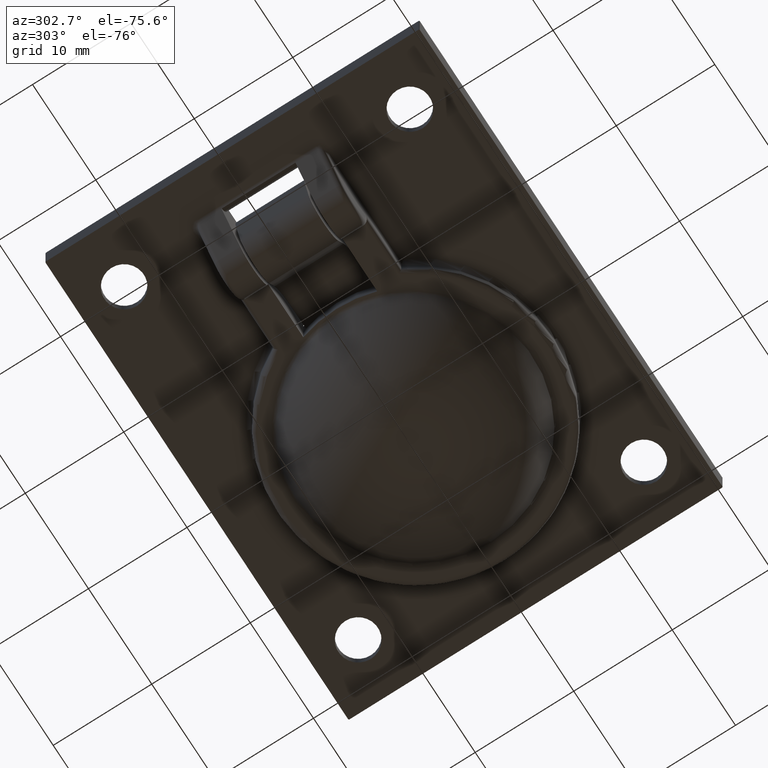
[diagram: clean part render]
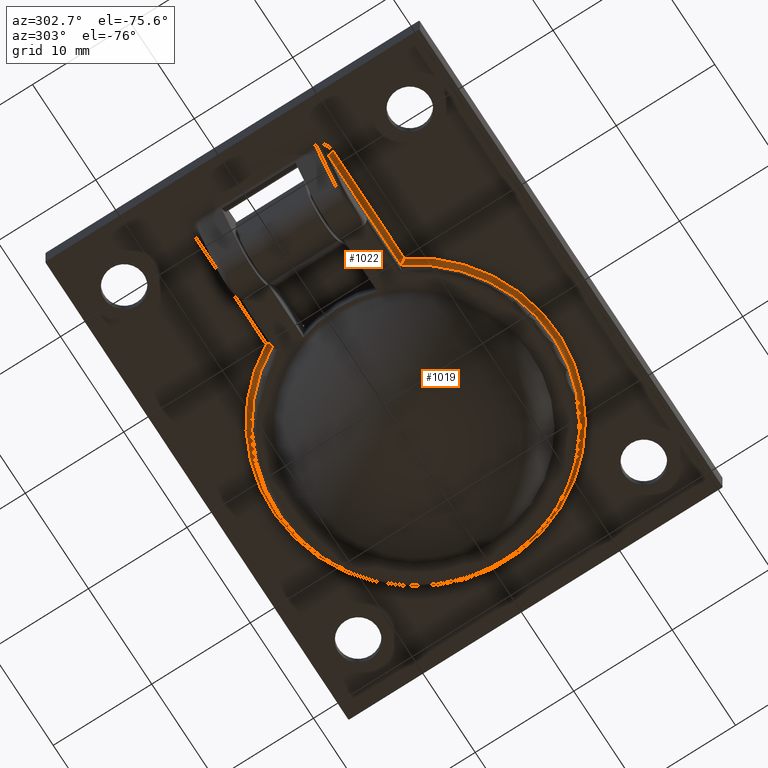
[diagram: same view with one multi-face feature highlighted, each face labeled with its STEP entity id]
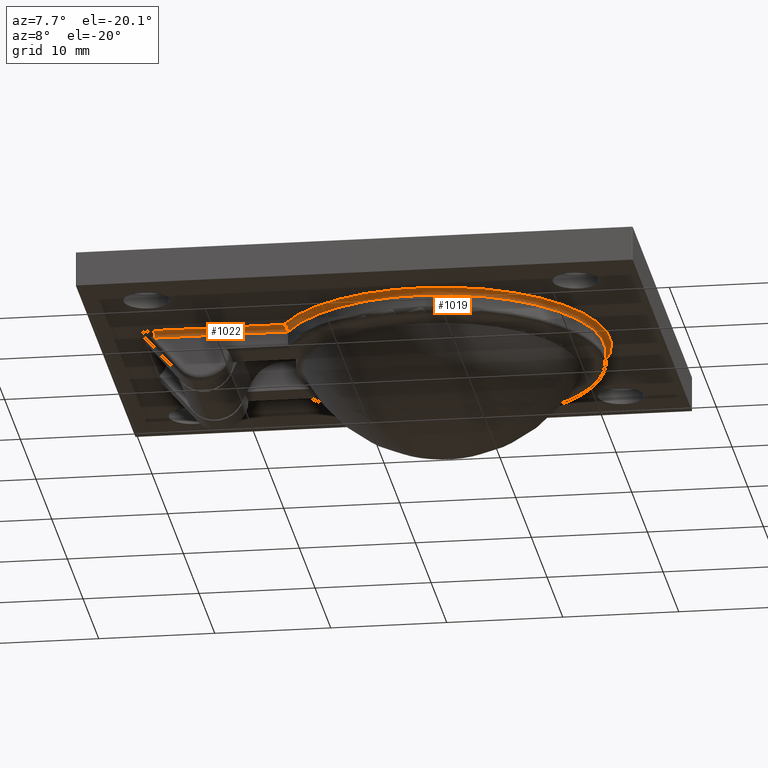
[diagram: same view with one multi-face feature highlighted, each face labeled with its STEP entity id]
A machine part, auxiliary view. The highlighted faces form ONE feature: a constant-radius fillet chain: 2 tangent blend faces with common blend radius 0.5 mm. The faces share edges in the B-rep.
A second angle (auxiliary view) of the same feature is appended — it is thin or edge-on in the first view.
Their STEP definitions:
[1] entity #1019 (Torus):
#29=B_SPLINE_CURVE_WITH_KNOTS('',3,(#1620,#1621,#1622,#1623,#1624,#1625,
#1626,#1627,#1628,#1629,#1630,#1631,#1632,#1633),.UNSPECIFIED.,.F.,.F.,
(4,2,2,2,2,2,4),(-0.170672308564383,-0.170304983728353,-0.150642975849692,
-0.131472588240011,-0.111842634959392,-0.0944389200334379,-0.0851503769045334),
 .UNSPECIFIED.);
#30=B_SPLINE_CURVE_WITH_KNOTS('',3,(#1636,#1637,#1638,#1639,#1640,#1641,
#1642,#1643,#1644,#1645,#1646,#1647,#1648,#1649),.UNSPECIFIED.,.F.,.F.,
(4,2,2,2,2,2,4),(-0.00036726159142649,0.,0.0196586225482538,0.0388257094728723,
0.0584522829421491,0.0758530013620775,0.0851399452246438),.UNSPECIFIED.);
#37=TOROIDAL_SURFACE('',#1103,14.5,0.5);
#110=FACE_OUTER_BOUND('',#179,.T.);
#179=EDGE_LOOP('',(#751,#752,#753,#754));
#406=CIRCLE('',#1093,14.5);
#410=CIRCLE('',#1104,14.);
#482=VERTEX_POINT('',#1587);
#483=VERTEX_POINT('',#1589);
#492=VERTEX_POINT('',#1619);
#493=VERTEX_POINT('',#1634);
#583=EDGE_CURVE('',#483,#482,#406,.T.);
#598=EDGE_CURVE('',#482,#492,#29,.T.);
#599=EDGE_CURVE('',#492,#493,#410,.T.);
#600=EDGE_CURVE('',#483,#493,#30,.T.);
#751=ORIENTED_EDGE('',*,*,#583,.T.);
#752=ORIENTED_EDGE('',*,*,#598,.T.);
#753=ORIENTED_EDGE('',*,*,#599,.T.);
#754=ORIENTED_EDGE('',*,*,#600,.F.);
#1019=ADVANCED_FACE('',(#110),#37,.F.);
#1093=AXIS2_PLACEMENT_3D('',#1590,#1256,#1257);
#1103=AXIS2_PLACEMENT_3D('',#1618,#1286,#1287);
#1104=AXIS2_PLACEMENT_3D('',#1635,#1288,#1289);
#1256=DIRECTION('center_axis',(0.,0.,-1.));
#1257=DIRECTION('ref_axis',(1.,0.,0.));
#1286=DIRECTION('center_axis',(0.,0.,1.));
#1287=DIRECTION('ref_axis',(1.,0.,0.));
#1288=DIRECTION('center_axis',(0.,0.,1.));
#1289=DIRECTION('ref_axis',(1.,0.,0.));
#1587=CARTESIAN_POINT('',(-7.69842509920029,-7.,0.));
#1589=CARTESIAN_POINT('',(-7.69842509920029,7.00000000000001,0.));
#1590=CARTESIAN_POINT('Origin',(5.,0.,0.));
#1618=CARTESIAN_POINT('Origin',(5.,0.,-0.5));
#1619=CARTESIAN_POINT('',(-7.39959676763724,-6.5,-0.5));
#1620=CARTESIAN_POINT('Ctrl Pts',(-7.69842509920029,-7.00000000000001,0.));
#1621=CARTESIAN_POINT('Ctrl Pts',(-7.69780253249673,-6.99894591777941,6.45439208743603E-20));
#1622=CARTESIAN_POINT('Ctrl Pts',(-7.6971799317986,-6.99789185552049,-3.33326797864674E-6));
#1623=CARTESIAN_POINT('Ctrl Pts',(-7.66322968003125,-6.94041834656901,-0.000366822660354576));
#1624=CARTESIAN_POINT('Ctrl Pts',(-7.62982551078916,-6.88409788023881,-0.0102730383836699));
#1625=CARTESIAN_POINT('Ctrl Pts',(-7.56661854614383,-6.77792853555546,-0.0485702806725845));
#1626=CARTESIAN_POINT('Ctrl Pts',(-7.53678455951202,-6.72801644957402,-0.0764759777200026));
#1627=CARTESIAN_POINT('Ctrl Pts',(-7.48246255001387,-6.63740773421075,-0.150662160538797));
#1628=CARTESIAN_POINT('Ctrl Pts',(-7.45834599966746,-6.5973356203676,-0.197081496053141));
#1629=CARTESIAN_POINT('Ctrl Pts',(-7.42301363882655,-6.53873281153386,-0.299259508293295));
#1630=CARTESIAN_POINT('Ctrl Pts',(-7.41099226620032,-6.51884593420638,-0.352408924478812));
#1631=CARTESIAN_POINT('Ctrl Pts',(-7.40128997711463,-6.50279877982102,-0.4389363864534));
#1632=CARTESIAN_POINT('Ctrl Pts',(-7.39959676763724,-6.5,-0.469455561443469));
#1633=CARTESIAN_POINT('Ctrl Pts',(-7.39959676763724,-6.5,-0.5));
#1634=CARTESIAN_POINT('',(-7.39959676763724,6.5,-0.5));
#1635=CARTESIAN_POINT('Origin',(5.,0.,-0.5));
#1636=CARTESIAN_POINT('Ctrl Pts',(-7.69842509920029,7.00000000000001,0.));
#1637=CARTESIAN_POINT('Ctrl Pts',(-7.69780253249672,6.9989459177794,6.45439208751203E-20));
#1638=CARTESIAN_POINT('Ctrl Pts',(-7.69717993179861,6.9978918555205,-3.33326797856248E-6));
#1639=CARTESIAN_POINT('Ctrl Pts',(-7.66322968003102,6.94041834656879,-0.000366822660356533));
#1640=CARTESIAN_POINT('Ctrl Pts',(-7.62982551078914,6.88409788023876,-0.0102730383836857));
#1641=CARTESIAN_POINT('Ctrl Pts',(-7.56661854614382,6.77792853555544,-0.0485702806725884));
#1642=CARTESIAN_POINT('Ctrl Pts',(-7.53678455951201,6.72801644957402,-0.0764759777200072));
#1643=CARTESIAN_POINT('Ctrl Pts',(-7.48246255001386,6.63740773421075,-0.150662160538803));
#1644=CARTESIAN_POINT('Ctrl Pts',(-7.45834599966745,6.59733562036761,-0.197081496053145));
#1645=CARTESIAN_POINT('Ctrl Pts',(-7.42301363882656,6.53873281153388,-0.299259508293262));
#1646=CARTESIAN_POINT('Ctrl Pts',(-7.41099226620033,6.51884593420638,-0.352408924478793));
#1647=CARTESIAN_POINT('Ctrl Pts',(-7.40128997711463,6.50279877982101,-0.438936386453413));
#1648=CARTESIAN_POINT('Ctrl Pts',(-7.39959676763724,6.5,-0.469455561443479));
#1649=CARTESIAN_POINT('Ctrl Pts',(-7.39959676763724,6.5,-0.5));
[2] entity #1022 (Cylinder):
#29=B_SPLINE_CURVE_WITH_KNOTS('',3,(#1620,#1621,#1622,#1623,#1624,#1625,
#1626,#1627,#1628,#1629,#1630,#1631,#1632,#1633),.UNSPECIFIED.,.F.,.F.,
(4,2,2,2,2,2,4),(-0.170672308564383,-0.170304983728353,-0.150642975849692,
-0.131472588240011,-0.111842634959392,-0.0944389200334379,-0.0851503769045334),
 .UNSPECIFIED.);
#113=FACE_OUTER_BOUND('',#182,.T.);
#182=EDGE_LOOP('',(#763,#764,#765,#766));
#275=LINE('',#1588,#343);
#286=LINE('',#1709,#354);
#343=VECTOR('',#1255,11.2160531222347);
#354=VECTOR('',#1304,11.5148814537978);
#413=CIRCLE('',#1109,0.5);
#480=VERTEX_POINT('',#1584);
#482=VERTEX_POINT('',#1587);
#492=VERTEX_POINT('',#1619);
#495=VERTEX_POINT('',#1704);
#582=EDGE_CURVE('',#482,#480,#275,.T.);
#598=EDGE_CURVE('',#482,#492,#29,.T.);
#605=EDGE_CURVE('',#480,#495,#413,.T.);
#607=EDGE_CURVE('',#495,#492,#286,.T.);
#763=ORIENTED_EDGE('',*,*,#582,.T.);
#764=ORIENTED_EDGE('',*,*,#605,.T.);
#765=ORIENTED_EDGE('',*,*,#607,.T.);
#766=ORIENTED_EDGE('',*,*,#598,.F.);
#988=CYLINDRICAL_SURFACE('',#1111,0.5);
#1022=ADVANCED_FACE('',(#113),#988,.F.);
#1109=AXIS2_PLACEMENT_3D('',#1706,#1298,#1299);
#1111=AXIS2_PLACEMENT_3D('',#1708,#1302,#1303);
#1255=DIRECTION('',(-1.,0.,0.));
#1298=DIRECTION('center_axis',(-1.,0.,0.));
#1299=DIRECTION('ref_axis',(0.,0.,1.));
#1302=DIRECTION('center_axis',(1.,0.,0.));
#1303=DIRECTION('ref_axis',(0.,0.707106781186548,0.707106781186547));
#1304=DIRECTION('',(1.,0.,0.));
#1584=CARTESIAN_POINT('',(-18.914478221435,-7.,0.));
#1587=CARTESIAN_POINT('',(-7.69842509920029,-7.,0.));
#1588=CARTESIAN_POINT('',(-9.02743976754594,-7.,0.));
#1619=CARTESIAN_POINT('',(-7.39959676763724,-6.5,-0.5));
#1620=CARTESIAN_POINT('Ctrl Pts',(-7.69842509920029,-7.00000000000001,0.));
#1621=CARTESIAN_POINT('Ctrl Pts',(-7.69780253249673,-6.99894591777941,6.45439208743603E-20));
#1622=CARTESIAN_POINT('Ctrl Pts',(-7.6971799317986,-6.99789185552049,-3.33326797864674E-6));
#1623=CARTESIAN_POINT('Ctrl Pts',(-7.66322968003125,-6.94041834656901,-0.000366822660354576));
#1624=CARTESIAN_POINT('Ctrl Pts',(-7.62982551078916,-6.88409788023881,-0.0102730383836699));
#1625=CARTESIAN_POINT('Ctrl Pts',(-7.56661854614383,-6.77792853555546,-0.0485702806725845));
#1626=CARTESIAN_POINT('Ctrl Pts',(-7.53678455951202,-6.72801644957402,-0.0764759777200026));
#1627=CARTESIAN_POINT('Ctrl Pts',(-7.48246255001387,-6.63740773421075,-0.150662160538797));
#1628=CARTESIAN_POINT('Ctrl Pts',(-7.45834599966746,-6.5973356203676,-0.197081496053141));
#1629=CARTESIAN_POINT('Ctrl Pts',(-7.42301363882655,-6.53873281153386,-0.299259508293295));
#1630=CARTESIAN_POINT('Ctrl Pts',(-7.41099226620032,-6.51884593420638,-0.352408924478812));
#1631=CARTESIAN_POINT('Ctrl Pts',(-7.40128997711463,-6.50279877982102,-0.4389363864534));
#1632=CARTESIAN_POINT('Ctrl Pts',(-7.39959676763724,-6.5,-0.469455561443469));
#1633=CARTESIAN_POINT('Ctrl Pts',(-7.39959676763724,-6.5,-0.5));
#1704=CARTESIAN_POINT('',(-18.914478221435,-6.5,-0.5));
#1706=CARTESIAN_POINT('Origin',(-18.914478221435,-7.,-0.5));
#1708=CARTESIAN_POINT('Origin',(-9.02743976754594,-7.,-0.5));
#1709=CARTESIAN_POINT('',(-9.02743976754594,-6.5,-0.5));